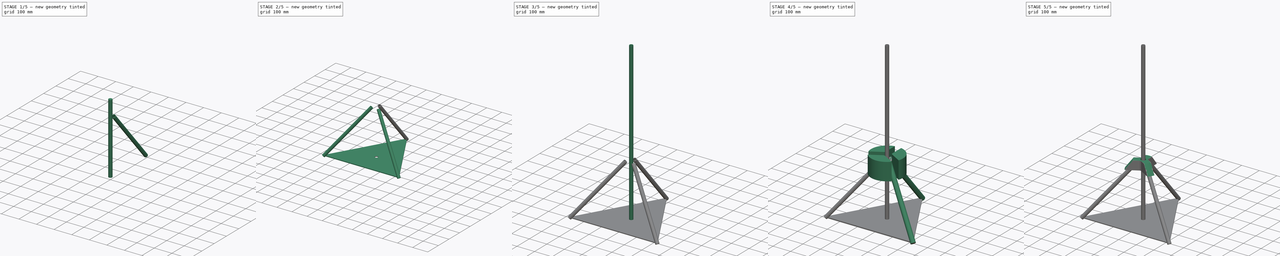
[diagram: build sequence overview — one tinted view per stage of 5, left to right]
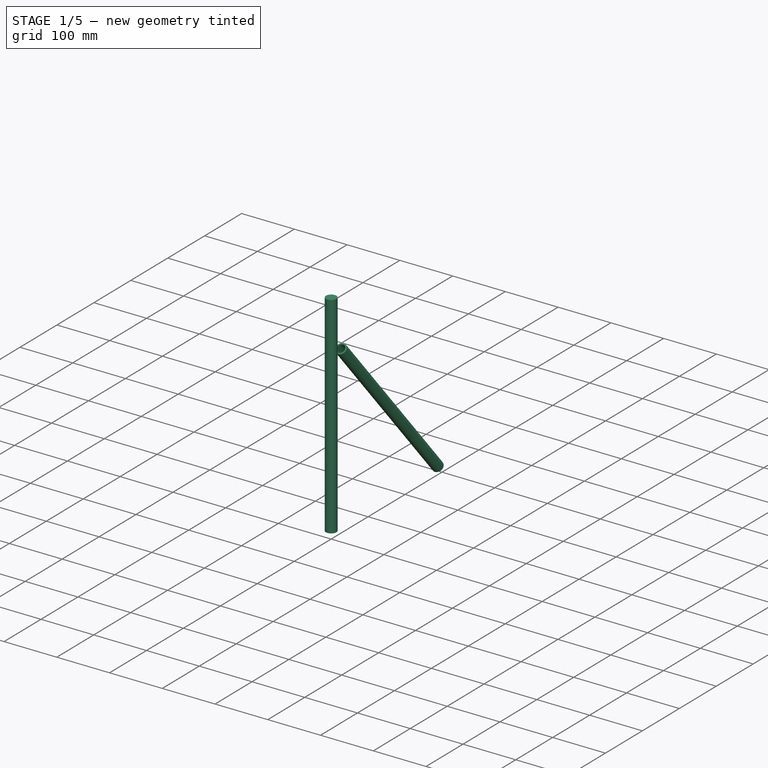
[diagram: stage 1 of 5 — iso view after this stage's code; geometry added in this stage tinted green]
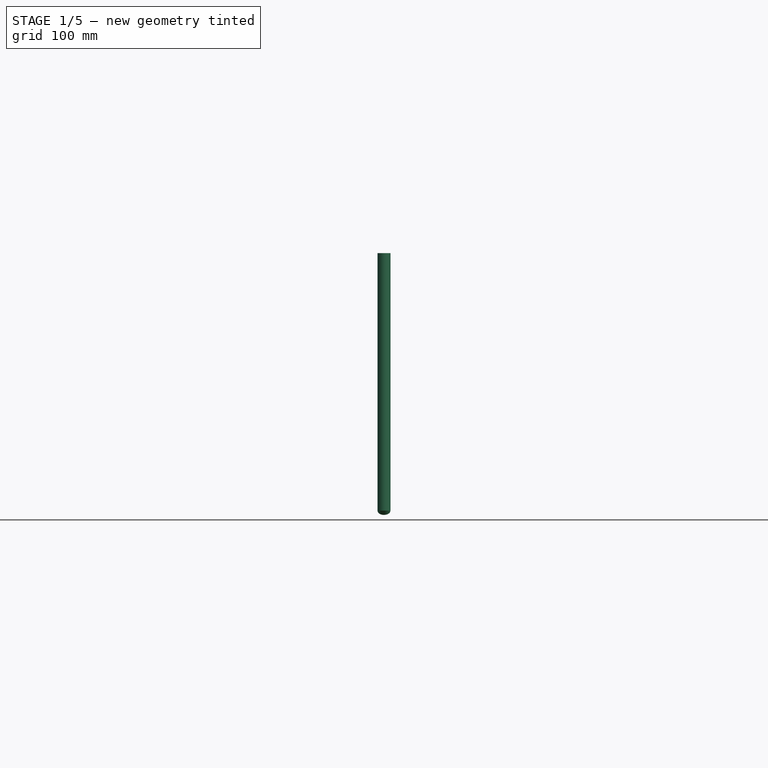
[diagram: stage 1 of 5 — front view after this stage's code; geometry added in this stage tinted green]
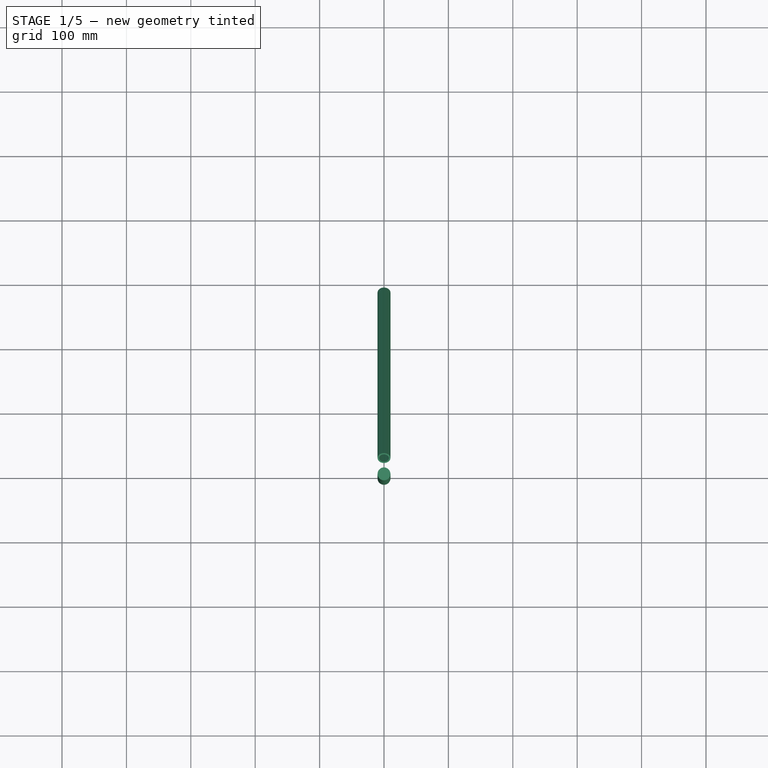
[diagram: stage 1 of 5 — top view after this stage's code; geometry added in this stage tinted green]
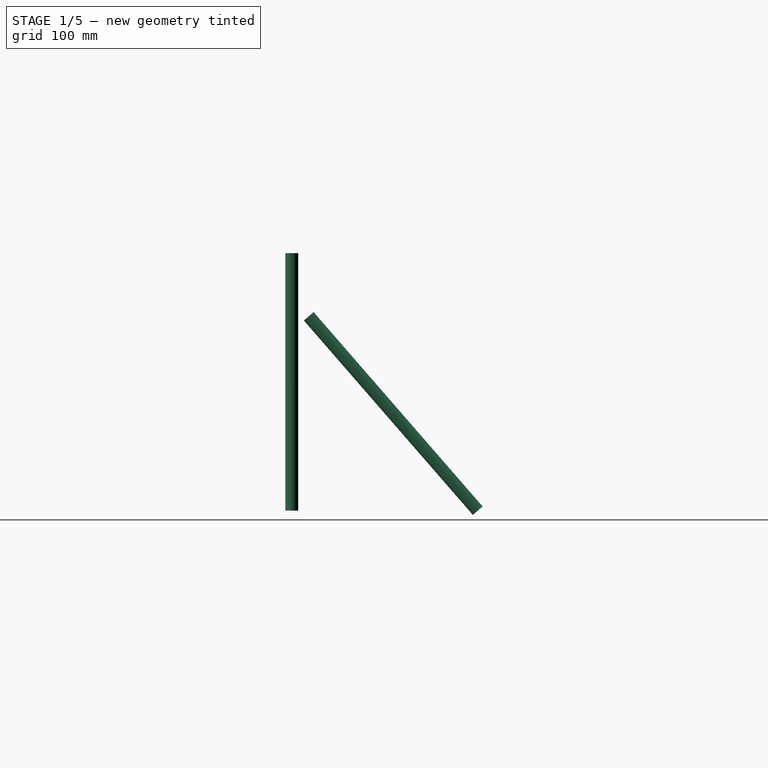
[diagram: stage 1 of 5 — right view after this stage's code; geometry added in this stage tinted green]
FCSTD DOCUMENT  (FreeCAD 0.18R16146 (Git))
Label: 04_CameraTripod
License: All rights reserved
LicenseURL: http://en.wikipedia.org/wiki/All_rights_reserved
objects: Part::Cylinder×11, Sketcher::SketchObject×8, Part::Cut×6, PartDesign::Body×5, PartDesign::Pad×4, PartDesign::Revolution×3, Part::MultiFuse×3, App::DocumentObjectGroup×1
note: 47 computed .brp shape members not serialized (recipe doc carries the construction recipe); baked Part::Feature solids carry a one-line shape summary decoded from their .brp

FEATURE [Part::Cylinder] Cylinder004
  Angle = 360
  AttacherType = Attacher::AttachEngine3D
  Height = 400
  Radius = 10
FEATURE [Part::Cylinder] Cylinder005
  Angle = 360
  AttacherType = Attacher::AttachEngine3D
  Height = 400
  Radius = 7.5
FEATURE [Part::Cylinder] Cylinder006
  Angle = 360
  AttacherType = Attacher::AttachEngine3D
  Height = 400
  Radius = 10
FEATURE [Part::Cylinder] Cylinder007
  Angle = 360
  AttacherType = Attacher::AttachEngine3D
  Height = 400
  Radius = 7.5
FEATURE [Part::Cut] Cut003  label="TubeTripodC"
  Base = -> Cylinder006
  Placement = pos=(0,288.68,0) rot=(1,0,0;0.715585rad)
  Tool = -> Cylinder007
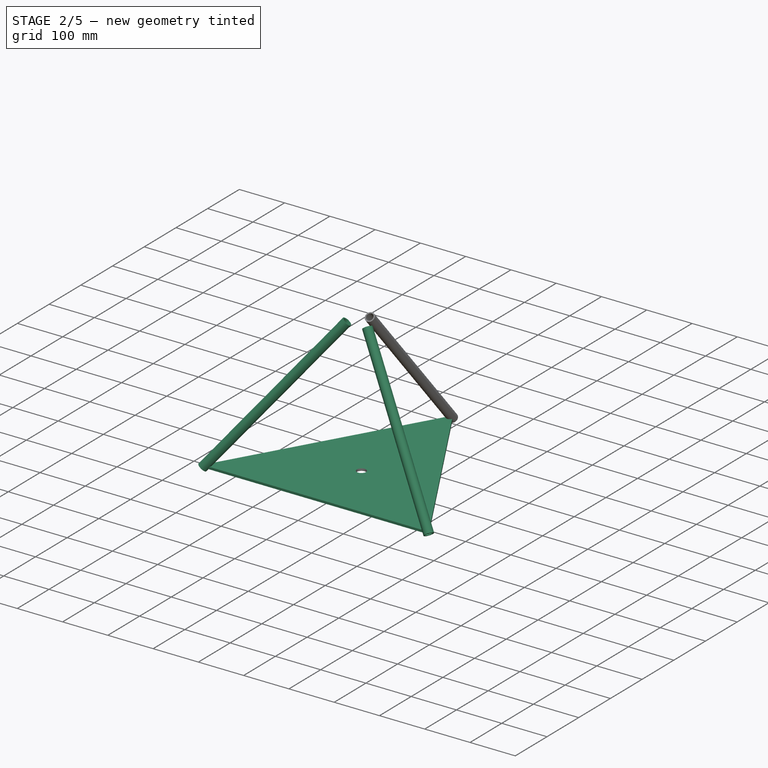
[diagram: stage 2 of 5 — iso view after this stage's code; geometry added in this stage tinted green]
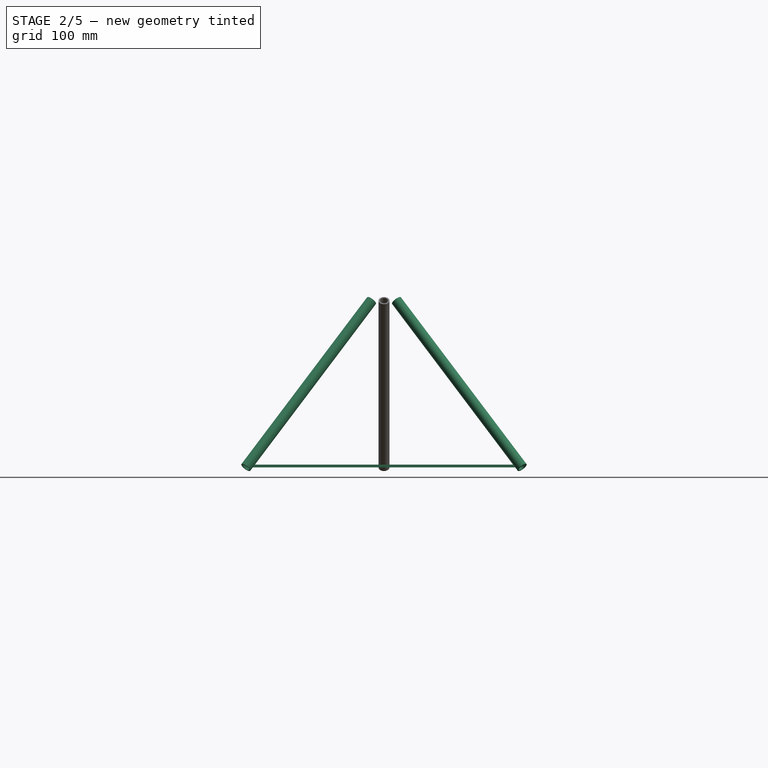
[diagram: stage 2 of 5 — front view after this stage's code; geometry added in this stage tinted green]
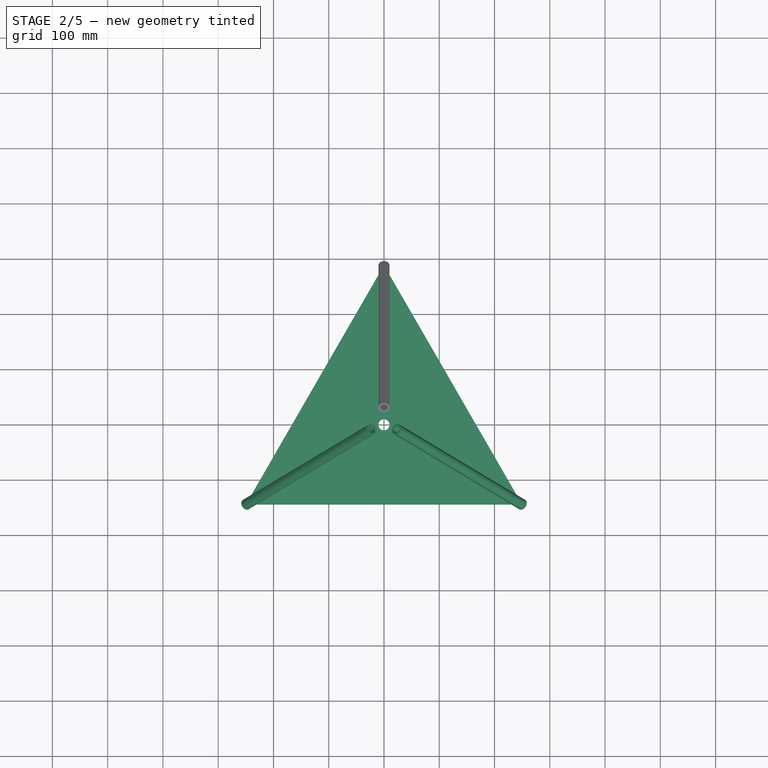
[diagram: stage 2 of 5 — top view after this stage's code; geometry added in this stage tinted green]
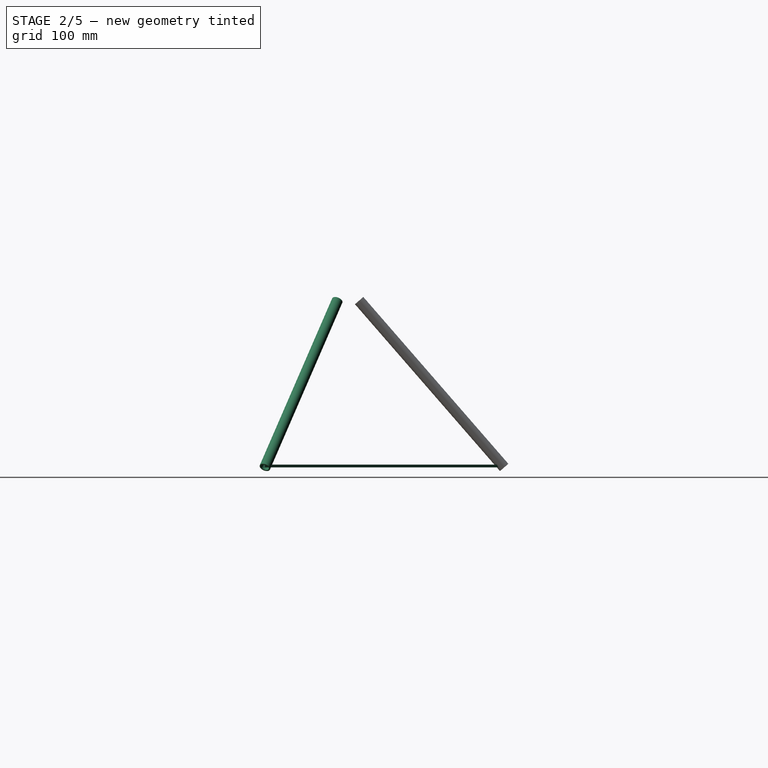
[diagram: stage 2 of 5 — right view after this stage's code; geometry added in this stage tinted green]
FEATURE [Part::Cylinder] Cylinder002
  Angle = 360
  AttacherType = Attacher::AttachEngine3D
  Height = 400
  Radius = 7.5
FEATURE [Part::Cylinder] Cylinder003
  Angle = 360
  AttacherType = Attacher::AttachEngine3D
  Height = 400
  Radius = 10
FEATURE [Part::Cut] Cut001  label="TubeTripodA"
  Base = -> Cylinder003
  Placement = pos=(-250,-144.34,0) rot=(-0.499041,0.866578,0;0.715585rad)
  Tool = -> Cylinder002
FEATURE [Part::Cut] Cut002  label="TubeTripodB"
  Base = -> Cylinder004
  Placement = pos=(250,-144.34,0) rot=(-0.499041,-0.866578,0;0.715585rad)
  Tool = -> Cylinder005
FEATURE [Sketcher::SketchObject] Sketch
  MapMode = 5
  Support = -> [XY_Plane]
  sketch-geometry (4):
    g0: LineSegment StartX=-250 StartY=-144.338 StartZ=0 EndX=-2.84e-14 EndY=288.675 EndZ=0
    g1: LineSegment StartX=-2.84e-14 StartY=288.675 StartZ=0 EndX=250 EndY=-144.338 EndZ=0
    g2: LineSegment StartX=250 StartY=-144.338 StartZ=0 EndX=-250 EndY=-144.338 EndZ=0
    g3: Circle CenterX=0 CenterY=0 CenterZ=0 NormalX=0 NormalY=0 NormalZ=1 AngleXU=0 Radius=10
  constraints (10):
    c: Distance(g0) = 500
    c: Distance(g1) = 500
    c: Distance(g2) = 500
    c: Coincident(g2,g0)
    c: Coincident(g2,g1)
    c: Coincident(g0,g1)
    c: Symmetric(g1,g0,g-2)
    c: DistanceX(g3) = 0
    c: DistanceY(g3) = 0
    c: Radius(g3) = 10
FEATURE [PartDesign::Pad] Pad
  Length = 5
  Length2 = 100
  Profile = -> Sketch
  Type = 0
FEATURE [PartDesign::Body] Body001
  Group = -> [Sketch001,Revolution002]
  Origin = -> Origin001
  Tip = -> Revolution002
FEATURE [Part::MultiFuse] Fusion  label="Tripod"
  Shapes = -> [Cut001,Cut002,Cut003]
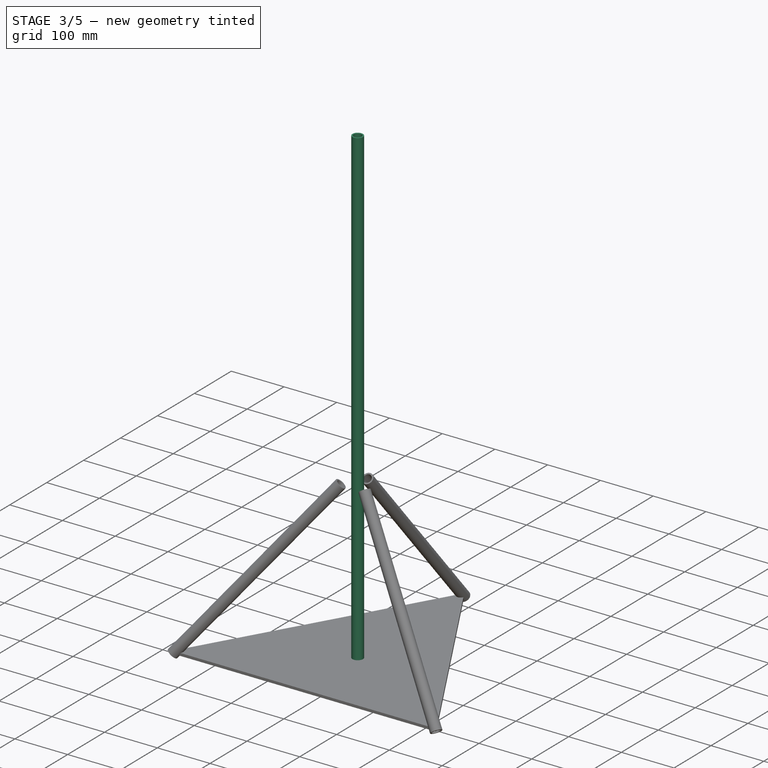
[diagram: stage 3 of 5 — iso view after this stage's code; geometry added in this stage tinted green]
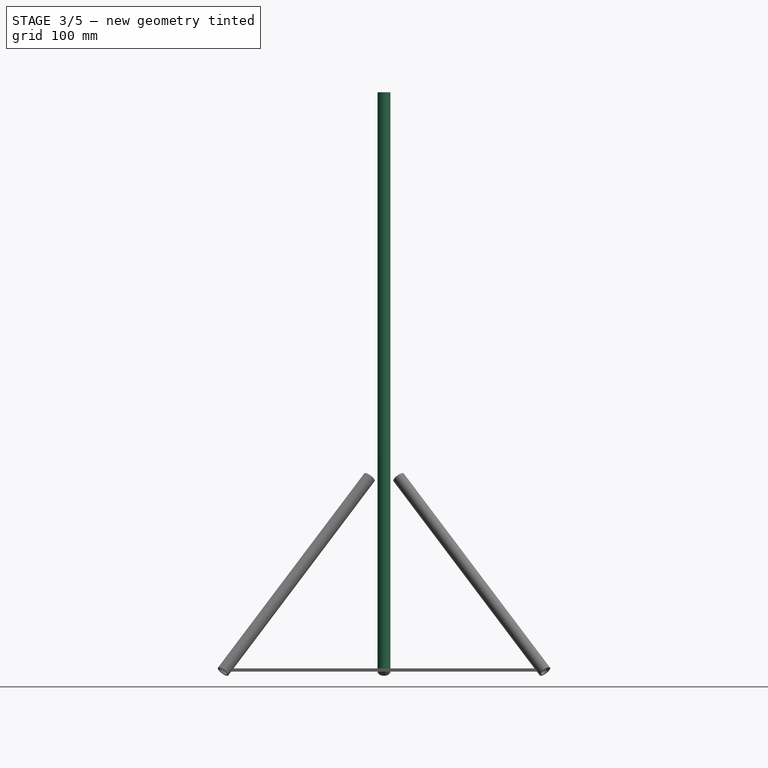
[diagram: stage 3 of 5 — front view after this stage's code; geometry added in this stage tinted green]
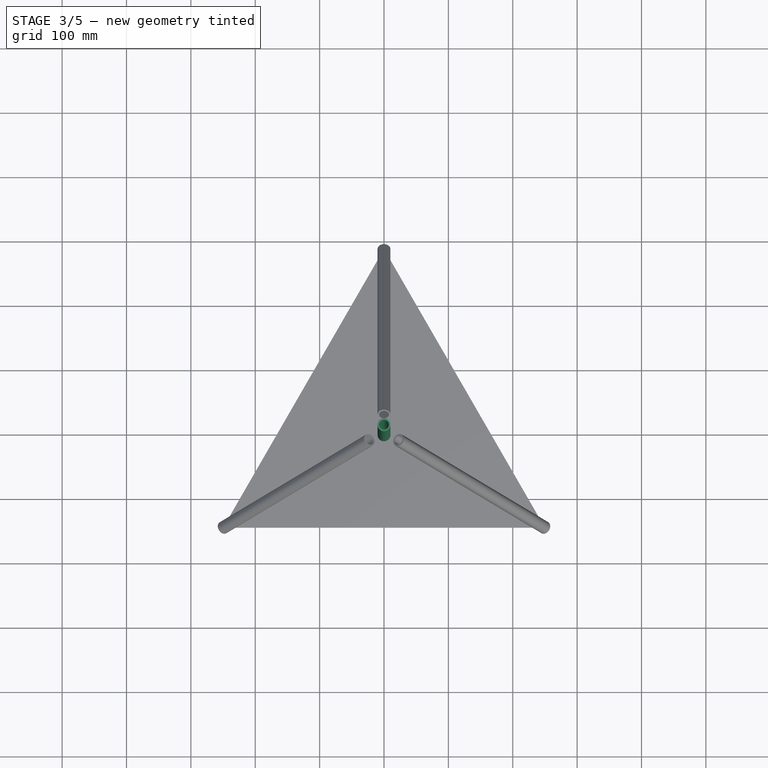
[diagram: stage 3 of 5 — top view after this stage's code; geometry added in this stage tinted green]
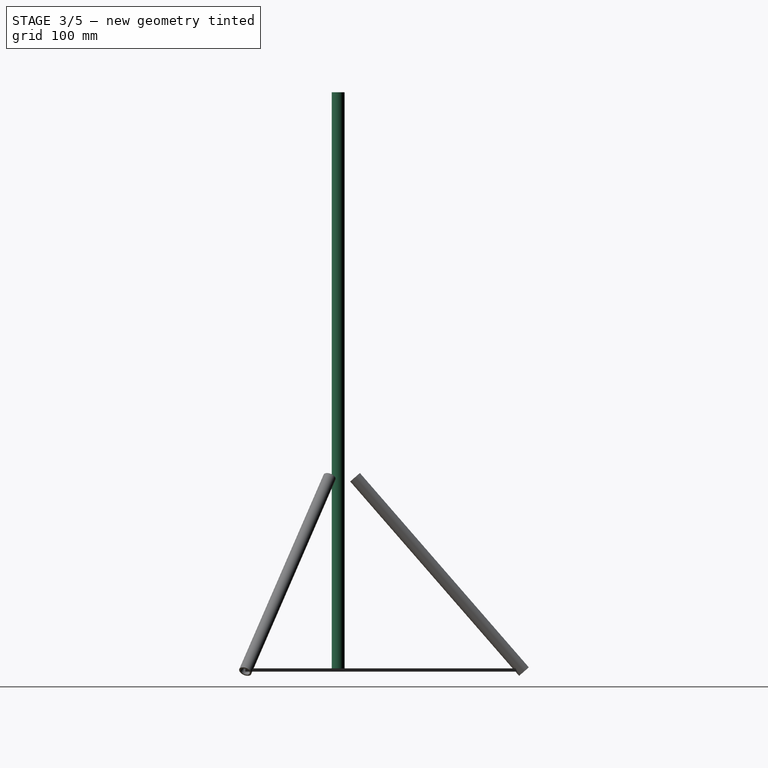
[diagram: stage 3 of 5 — right view after this stage's code; geometry added in this stage tinted green]
FEATURE [Part::Cylinder] Cylinder
  Angle = 360
  AttacherType = Attacher::AttachEngine3D
  Height = 900
  Radius = 10
FEATURE [Part::Cylinder] Cylinder001
  Angle = 360
  AttacherType = Attacher::AttachEngine3D
  Height = 900
  Radius = 7.5
FEATURE [Part::Cut] Cut  label="TubeBase"
  Base = -> Cylinder
  Tool = -> Cylinder001
FEATURE [Sketcher::SketchObject] Sketch001
  MapMode = 5
  Placement = pos=(0,0,0) rot=(1,0,0;1.5708rad)
  Support = -> [XZ_Plane001]
  sketch-geometry (5):
    g0: LineSegment StartX=-49.269 StartY=313 StartZ=0 EndX=-13.5 EndY=313 EndZ=0
    g1: LineSegment StartX=-13 StartY=312.5 StartZ=0 EndX=-13 EndY=262.929 EndZ=0
    g2: LineSegment StartX=-13 StartY=262.929 StartZ=0 EndX=-87 EndY=262.929 EndZ=0
    g3: LineSegment StartX=-87 StartY=262.929 StartZ=0 EndX=-49.269 EndY=313 EndZ=0
    g4: ArcOfCircle CenterX=-13.5 CenterY=312.5 CenterZ=0 NormalX=0 NormalY=0 NormalZ=1 AngleXU=0 Radius=0.5 StartAngle=2.69e-14 EndAngle=1.5708
  constraints (14):
    c: Coincident(g1,g2)
    c: Horizontal(g2)
    c: Vertical(g1)
    c: Coincident(g3,g2)
    c: Angle(g2,g3) = 0.925025
    c: Coincident(g0,g3)
    c: Tangent(g0,g4) = 1.5708
    c: Tangent(g1,g4) = 1.5708
    c: DistanceX(g1) = -13
    c: DistanceY(g1) = 262.929
    c: DistanceX(g2,g2) = 74
    c: DistanceX(g0) = -13.5
    c: DistanceY(g0) = 313
    c: Horizontal(g0)
FEATURE [Sketcher::SketchObject] CopySketch001
  Placement = pos=(0,0,0) rot=(1,0,0;1.5708rad)
  sketch-geometry (5):
    g0: LineSegment StartX=-34.3014 StartY=312.957 StartZ=0 EndX=-13.4348 EndY=312.933 EndZ=0
    g1: LineSegment StartX=-10 StartY=309.495 StartZ=0 EndX=-10 EndY=262.929 EndZ=0
    g2: LineSegment StartX=-10 StartY=262.929 StartZ=0 EndX=-72 EndY=262.929 EndZ=0
    g3: LineSegment StartX=-72 StartY=262.929 StartZ=0 EndX=-34.3014 EndY=312.957 EndZ=0
    g4: ArcOfCircle CenterX=-13.4387 CenterY=309.495 CenterZ=0 NormalX=0 NormalY=0 NormalZ=1 AngleXU=0 Radius=3.4387 StartAngle=2e-16 EndAngle=1.56966
  constraints (8):
    c: Coincident(g1,g2)
    c: Horizontal(g2)
    c: Vertical(g1)
    c: Coincident(g3,g2)
    c: Angle(g2,g3) = 0.925025
    c: Coincident(g0,g3)
    c: Tangent(g0,g4) = 1.5708
    c: Tangent(g1,g4) = 1.5708
FEATURE [PartDesign::Revolution] Revolution
  Angle = 360
  Axis = (-3e-16,3e-16,1)
  Base = (0,0,0)
  BaseFeature = -> Pad
  Midplane = true
  Profile = -> CopySketch001
  ReferenceAxis = -> Z_Axis
FEATURE [Sketcher::SketchObject] CopySketch001001  label="CopySketch002"
  Placement = pos=(0,0,0) rot=(1,0,0;1.5708rad)
  sketch-geometry (5):
    g0: LineSegment StartX=-34.3014 StartY=312.957 StartZ=0 EndX=-13.4348 EndY=312.933 EndZ=0
    g1: LineSegment StartX=-10 StartY=309.495 StartZ=0 EndX=-10 EndY=262.929 EndZ=0
    g2: LineSegment StartX=-10 StartY=262.929 StartZ=0 EndX=-72 EndY=262.929 EndZ=0
    g3: LineSegment StartX=-72 StartY=262.929 StartZ=0 EndX=-34.3014 EndY=312.957 EndZ=0
    g4: ArcOfCircle CenterX=-13.4387 CenterY=309.495 CenterZ=0 NormalX=0 NormalY=0 NormalZ=1 AngleXU=0 Radius=3.4387 StartAngle=2e-16 EndAngle=1.56966
  constraints (8):
    c: Coincident(g1,g2)
    c: Horizontal(g2)
    c: Vertical(g1)
    c: Coincident(g3,g2)
    c: Angle(g2,g3) = 0.925025
    c: Coincident(g0,g3)
    c: Tangent(g0,g4) = 1.5708
    c: Tangent(g1,g4) = 1.5708
FEATURE [PartDesign::Revolution] Revolution001
  Angle = 360
  Axis = (-3e-16,3e-16,1)
  Base = (0,0,0)
  BaseFeature = -> Revolution
  Profile = -> CopySketch001001
  ReferenceAxis = -> Z_Axis
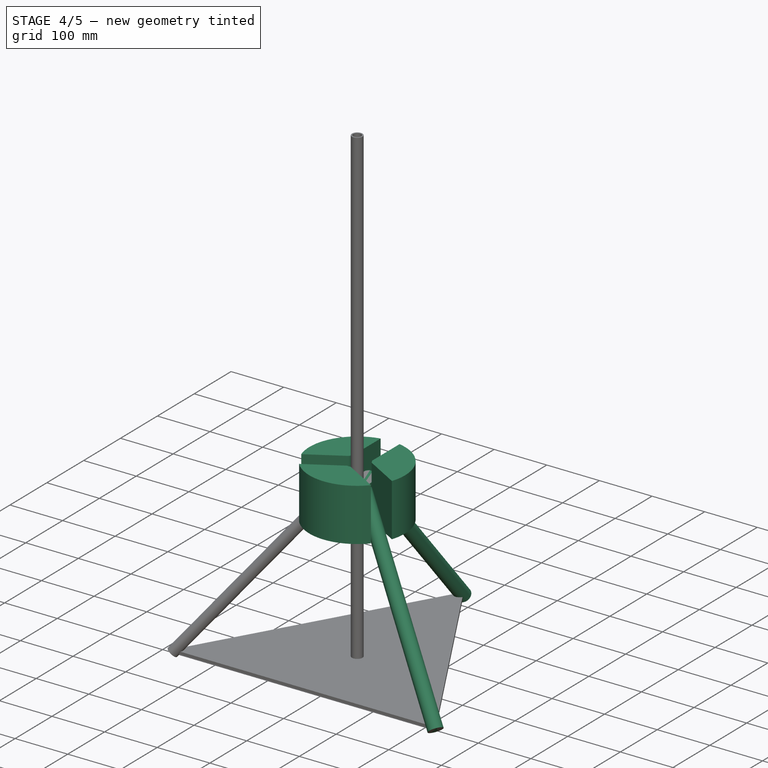
[diagram: stage 4 of 5 — iso view after this stage's code; geometry added in this stage tinted green]
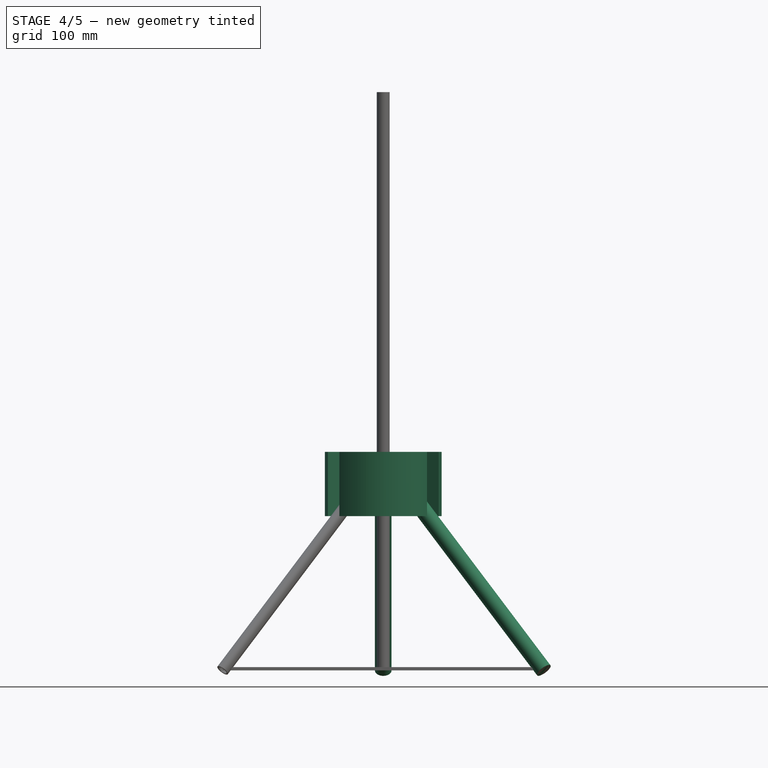
[diagram: stage 4 of 5 — front view after this stage's code; geometry added in this stage tinted green]
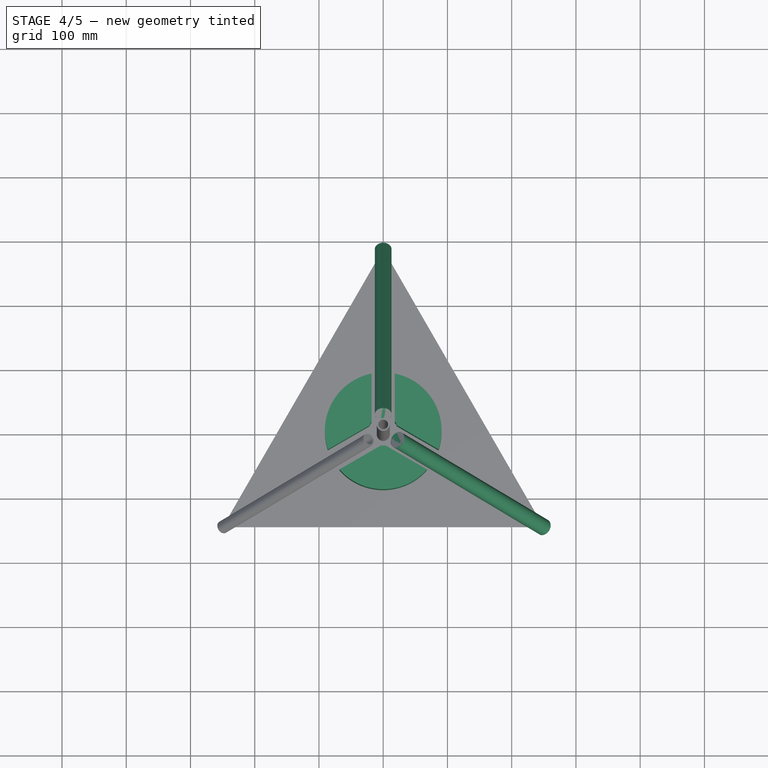
[diagram: stage 4 of 5 — top view after this stage's code; geometry added in this stage tinted green]
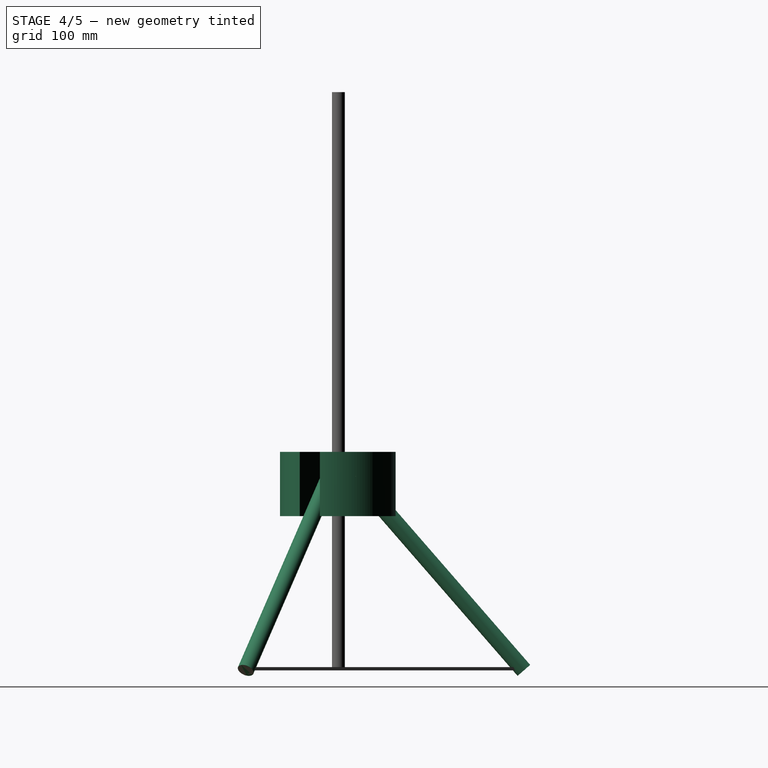
[diagram: stage 4 of 5 — right view after this stage's code; geometry added in this stage tinted green]
FEATURE [Part::Cylinder] Cylinder009
  Angle = 360
  AttacherType = Attacher::AttachEngine3D
  Height = 400
  Placement = pos=(250,-144.34,0) rot=(-0.498284,-0.867014,0;0.715585rad)
  Radius = 13
FEATURE [Part::Cylinder] Cylinder012
  Angle = 360
  AttacherType = Attacher::AttachEngine3D
  Height = 400
  Placement = pos=(0,288.68,0) rot=(1,0,0;0.715585rad)
  Radius = 13
FEATURE [Sketcher::SketchObject] Sketch003  label="BackupCutDisk"
  sketch-geometry (19):
    g0: Circle CenterX=0 CenterY=0 CenterZ=0 NormalX=0 NormalY=0 NormalZ=1 AngleXU=0 Radius=23
    g1: Circle CenterX=0 CenterY=0 CenterZ=0 NormalX=0 NormalY=0 NormalZ=1 AngleXU=0 Radius=90.9035
    g2: LineSegment StartX=-3.6e-15 StartY=36.0844 StartZ=0 EndX=-31.25 EndY=-18.0422 EndZ=0
    g3: LineSegment StartX=31.25 StartY=-18.0422 StartZ=0 EndX=-31.25 EndY=-18.0422 EndZ=0
    g4: LineSegment StartX=31.25 StartY=-18.0422 StartZ=0 EndX=-3.6e-15 EndY=36.0844 EndZ=0
    g5: LineSegment StartX=-3.6e-15 StartY=36.0844 StartZ=0 EndX=0 EndY=0 EndZ=0
    g6: LineSegment StartX=-31.25 StartY=-18.0422 StartZ=0 EndX=0 EndY=0 EndZ=0
    g7: LineSegment StartX=31.25 StartY=-18.0422 StartZ=0 EndX=0 EndY=0 EndZ=0
    g8: LineSegment StartX=-78.7247 StartY=-45.4517 StartZ=0 EndX=-31.25 EndY=-18.0422 EndZ=0
    g9: LineSegment StartX=-3.6e-15 StartY=36.0844 StartZ=0 EndX=-1.1e-15 EndY=90.9035 EndZ=0
    g10: LineSegment StartX=31.25 StartY=-18.0422 StartZ=0 EndX=78.7247 EndY=-45.4517 EndZ=0
    g11: LineSegment StartX=-21.3996 StartY=8.42955 StartZ=0 EndX=-86.1659 EndY=-28.9633 EndZ=0
    g12: LineSegment StartX=-3.3996 StartY=-22.7474 StartZ=0 EndX=-68.1659 EndY=-60.1402 EndZ=0
    g13: LineSegment StartX=-18 StartY=-14.3178 StartZ=0 EndX=-18 EndY=89.1036 EndZ=0
    g14: LineSegment StartX=18 StartY=-14.3178 StartZ=0 EndX=18 EndY=89.1036 EndZ=0
    g15: LineSegment StartX=-3.3996 StartY=22.7474 StartZ=0 EndX=86.1659 EndY=-28.9633 EndZ=0
    g16: LineSegment StartX=-21.3996 StartY=-8.42955 StartZ=0 EndX=68.1659 EndY=-60.1402 EndZ=0
    g17: LineSegment StartX=-68.1659 StartY=-60.1402 StartZ=0 EndX=-86.1659 EndY=-28.9633 EndZ=0
    g18: LineSegment StartX=86.1659 StartY=-28.9633 StartZ=0 EndX=68.1659 EndY=-60.1402 EndZ=0
  constraints (53):
    c: Coincident(g0,g-1)
    c: Radius(g0) = 23
    c: Coincident(g1,g0)
    c: Coincident(g3,g2)
    c: Horizontal(g3)
    c: Coincident(g4,g3)
    c: Coincident(g2,g4)
    c: Equal(g2,g3)
    c: Equal(g3,g4)
    c: Distance(g4) = 62.5
    c: Coincident(g5,g2)
    c: Coincident(g6,g2)
    c: Coincident(g6,g5)
    c: Coincident(g7,g3)
    c: Coincident(g7,g5)
    c: Equal(g7,g5)
    c: Equal(g5,g6)
    c: DistanceX(g5) = 0
    c: DistanceY(g5) = 0
    c: PointOnObject(g8,g1)
    c: Coincident(g8,g2)
    c: Coincident(g9,g2)
    c: PointOnObject(g9,g1)
    c: Coincident(g10,g3)
    c: PointOnObject(g10,g1)
    c: Parallel(g8,g6)
    c: Parallel(g10,g7)
    c: PointOnObject(g11,g0)
    c: PointOnObject(g11,g1)
    c: PointOnObject(g12,g0)
    c: PointOnObject(g13,g0)
    c: PointOnObject(g13,g1)
    c: Vertical(g13)
    c: PointOnObject(g14,g0)
    c: PointOnObject(g14,g1)
    c: Vertical(g14)
    c: PointOnObject(g15,g0)
    c: PointOnObject(g15,g1)
    c: PointOnObject(g16,g0)
    c: Symmetric(g13,g14,g9)
    c: DistanceX(g13) = -18
    c: Parallel(g11,g8)
    c: Parallel(g8,g12)
    c: Symmetric(g11,g12,g8)
    c: Coincident(g17,g12)
    c: Coincident(g17,g11)
    c: Distance(g17) = 36
    c: Parallel(g15,g10)
    c: Parallel(g10,g16)
    c: Symmetric(g16,g15,g10)
    c: Coincident(g18,g15)
    c: Coincident(g18,g16)
    c: Distance(g18) = 36
FEATURE [Sketcher::SketchObject] Sketch004  label="BackupCutDisk001"
  MapMode = 5
  Support = -> [XY_Plane002]
  sketch-geometry (4):
    g0: LineSegment StartX=-21.3996 StartY=8.42955 StartZ=0 EndX=-86.1659 EndY=-28.9633 EndZ=0
    g1: LineSegment StartX=-18 StartY=14.3178 StartZ=0 EndX=-18 EndY=89.1036 EndZ=0
    g2: ArcOfCircle CenterX=0 CenterY=0 CenterZ=0 NormalX=0 NormalY=0 NormalZ=1 AngleXU=0 Radius=23 StartAngle=2.46964 EndAngle=2.76635
    g3: ArcOfCircle CenterX=0 CenterY=0 CenterZ=0 NormalX=0 NormalY=0 NormalZ=1 AngleXU=0 Radius=90.9035 StartAngle=1.77013 EndAngle=3.46586
  constraints (5):
    c: Vertical(g1)
    c: PointOnObject(g2,g0)
    c: Coincident(g2,g1)
    c: Coincident(g3,g0)
    c: PointOnObject(g3,g1)
FEATURE [Sketcher::SketchObject] Sketch005  label="BackupCutDisk002"
  MapMode = 5
  Support = -> [XY_Plane004]
  sketch-geometry (4):
    g0: ArcOfCircle CenterX=0 CenterY=0 CenterZ=0 NormalX=0 NormalY=0 NormalZ=1 AngleXU=0 Radius=90.9035 StartAngle=5.95892 EndAngle=7.65465
    g1: LineSegment StartX=21.3996 StartY=8.42955 StartZ=0 EndX=86.1659 EndY=-28.9633 EndZ=0
    g2: LineSegment StartX=18 StartY=14.3178 StartZ=0 EndX=18 EndY=89.1036 EndZ=0
    g3: ArcOfCircle CenterX=0 CenterY=0 CenterZ=0 NormalX=0 NormalY=0 NormalZ=1 AngleXU=0 Radius=23 StartAngle=0.375247 EndAngle=0.671951
  constraints (4):
    c: PointOnObject(g3,g1)
    c: PointOnObject(g3,g2)
    c: Coincident(g0,g1)
    c: Coincident(g0,g2)
FEATURE [Sketcher::SketchObject] Sketch006  label="BackupCutDisk003"
  MapMode = 5
  Support = -> [XY_Plane003]
  sketch-geometry (4):
    g0: LineSegment StartX=-3.3996 StartY=-22.7474 StartZ=0 EndX=-68.1659 EndY=-60.1402 EndZ=0
    g1: ArcOfCircle CenterX=0 CenterY=0 CenterZ=0 NormalX=0 NormalY=0 NormalZ=1 AngleXU=0 Radius=23 StartAngle=4.56404 EndAngle=4.86074
    g2: LineSegment StartX=3.3996 StartY=-22.7474 StartZ=0 EndX=68.1659 EndY=-60.1402 EndZ=0
    g3: ArcOfCircle CenterX=0 CenterY=0 CenterZ=0 NormalX=0 NormalY=0 NormalZ=1 AngleXU=0 Radius=90.9035 StartAngle=3.86452 EndAngle=5.56026
  constraints (3):
    c: Coincident(g1,g0)
    c: Coincident(g2,g1)
    c: PointOnObject(g3,g0)
FEATURE [PartDesign::Pad] Pad001
  Length = 100
  Length2 = 100
  Profile = -> Sketch004
  Type = 0
FEATURE [PartDesign::Body] Body002
  Group = -> [Sketch004,Pad001]
  Origin = -> Origin002
  Tip = -> Pad001
FEATURE [PartDesign::Pad] Pad002
  Length = 100
  Length2 = 100
  Profile = -> Sketch006
  Type = 0
FEATURE [PartDesign::Body] Body003
  Group = -> [Sketch006,Pad002]
  Origin = -> Origin003
  Tip = -> Pad002
FEATURE [PartDesign::Pad] Pad003
  Length = 100
  Length2 = 100
  Profile = -> Sketch005
  Type = 0
FEATURE [PartDesign::Body] Body004
  Group = -> [Sketch005,Pad003]
  Origin = -> Origin004
  Tip = -> Pad003
FEATURE [Part::MultiFuse] Fusion002
  Placement = pos=(0,0,240) rot=(0,0,1;0rad)
  Shapes = -> [Body002,Body004,Body003]
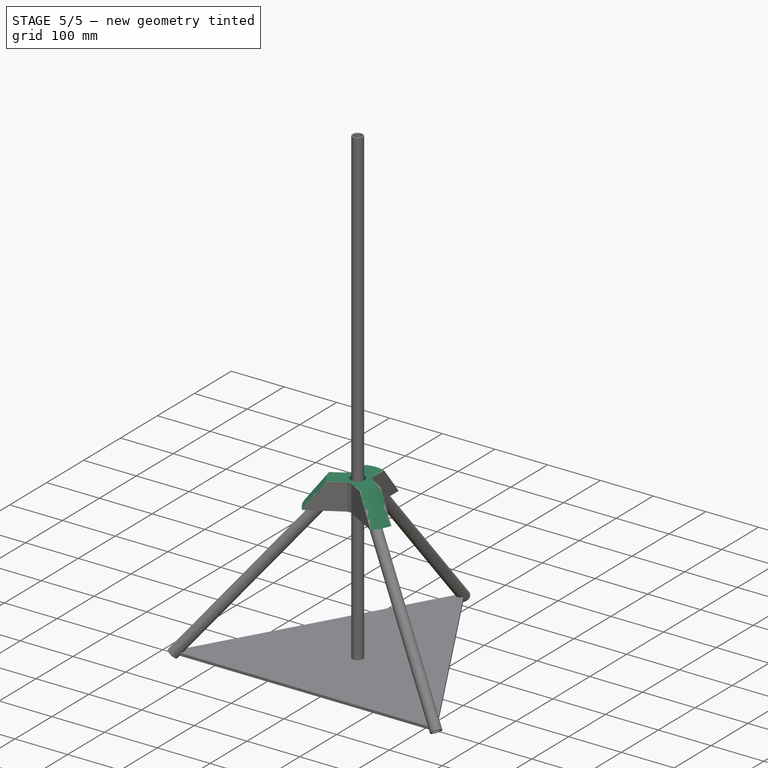
[diagram: stage 5 of 5 — iso view after this stage's code; geometry added in this stage tinted green]
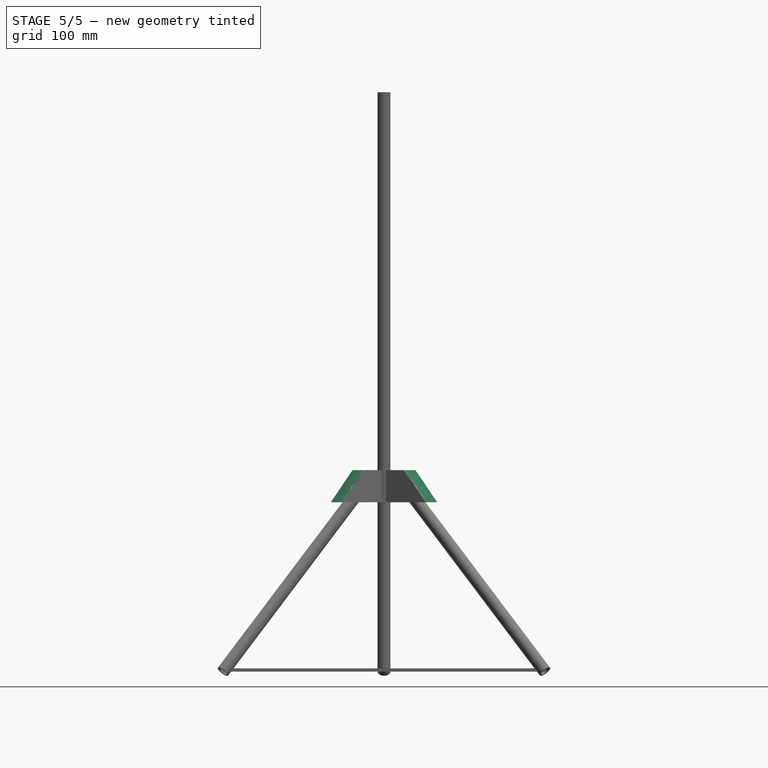
[diagram: stage 5 of 5 — front view after this stage's code; geometry added in this stage tinted green]
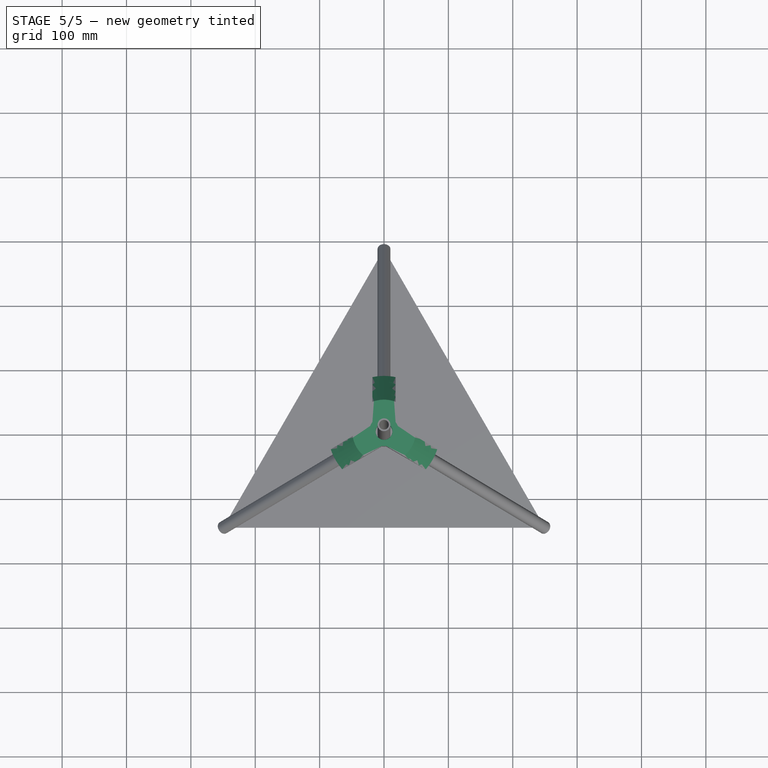
[diagram: stage 5 of 5 — top view after this stage's code; geometry added in this stage tinted green]
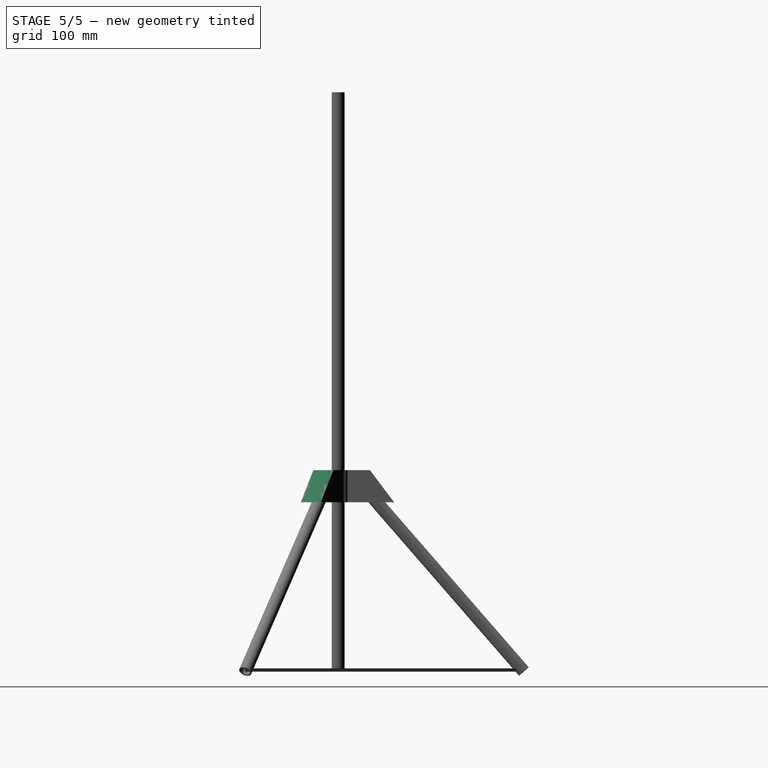
[diagram: stage 5 of 5 — right view after this stage's code; geometry added in this stage tinted green]
FEATURE [PartDesign::Body] Body  label="Base"
  Group = -> [Sketch,Pad,Revolution,Revolution001]
  Origin = -> Origin
  Tip = -> Revolution001
FEATURE [PartDesign::Revolution] Revolution002
  Angle = 360
  Axis = (0,-2e-16,1)
  Base = (0,0,0)
  Placement = pos=(0,0,0) rot=(1,0,0;1.5708rad)
  Profile = -> Sketch001
  ReferenceAxis = -> Sketch001 [V_Axis]
FEATURE [Part::Cylinder] Cylinder013
  Angle = 360
  AttacherType = Attacher::AttachEngine3D
  Height = 400
  Placement = pos=(-250,-144.34,0) rot=(-0.498284,0.867014,0;0.715585rad)
  Radius = 13
FEATURE [Part::MultiFuse] Fusion001  label="Tripod001"
  Shapes = -> [Cylinder013,Cylinder009,Cylinder012]
FEATURE [Part::Cut] Cut004  label="asdads"
  Base = -> Body001
  Tool = -> Fusion001
FEATURE [Part::Cut] Cut005  label="41_TripodSupport"
  Base = -> Cut004
  Tool = -> Fusion002
FEATURE [App::DocumentObjectGroup] Group  label="Resources"
  Group = -> [Cut,Body,Fusion,Sketch003]
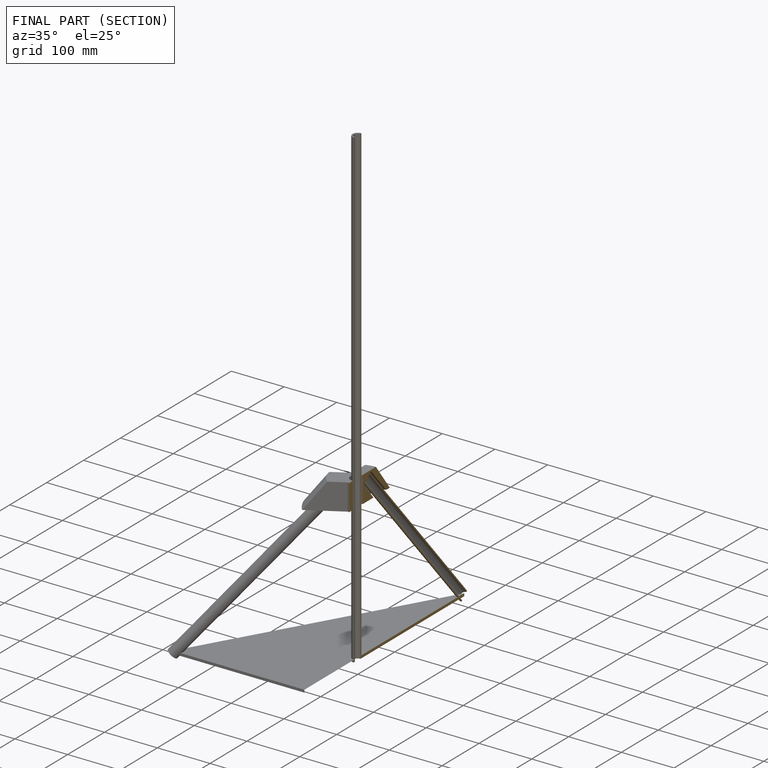
[diagram: finished part — half-section view (interior)]
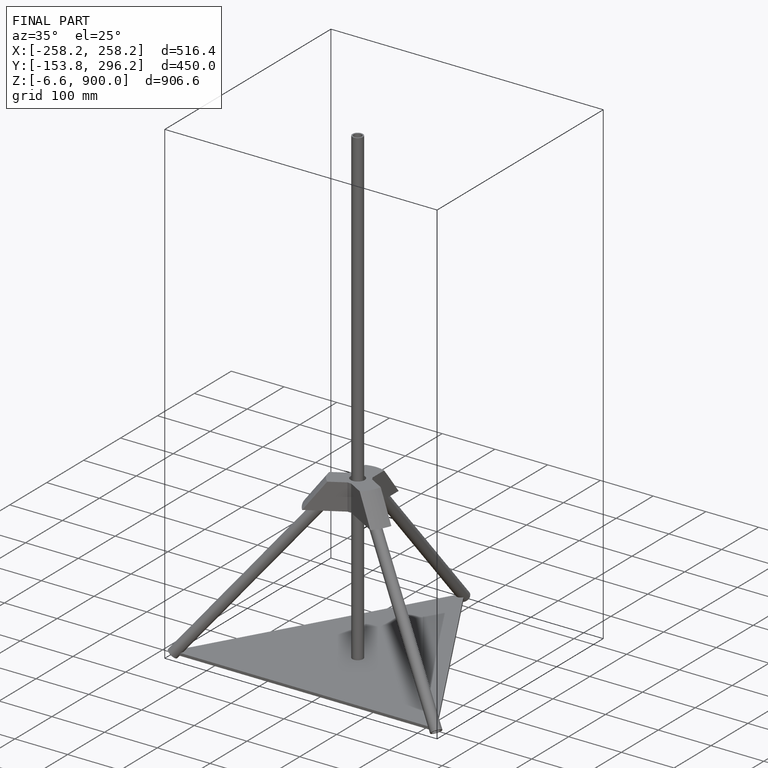
[diagram: finished part — iso view with bounding-box wireframe]
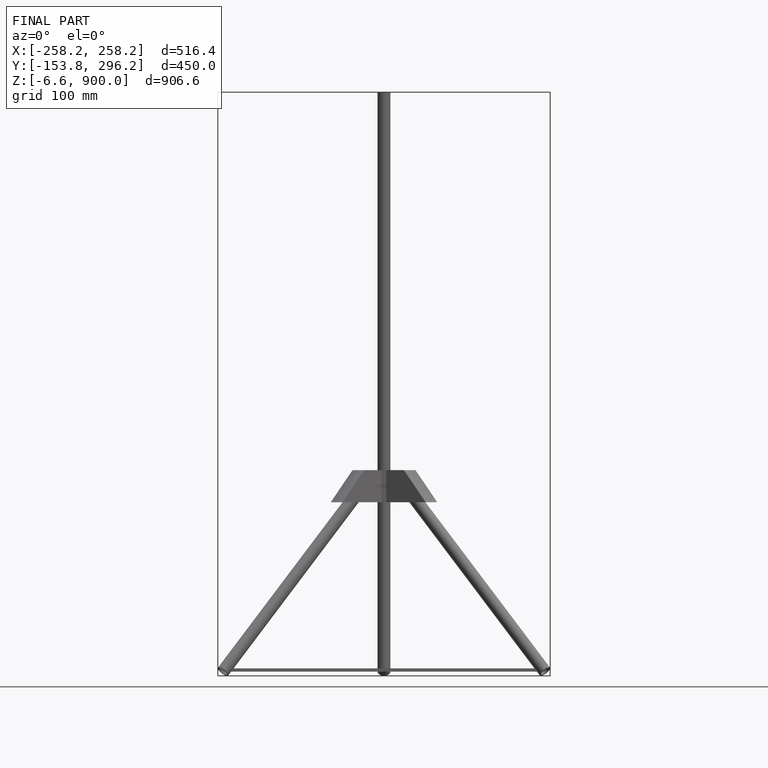
[diagram: finished part — front view with bounding-box wireframe]
